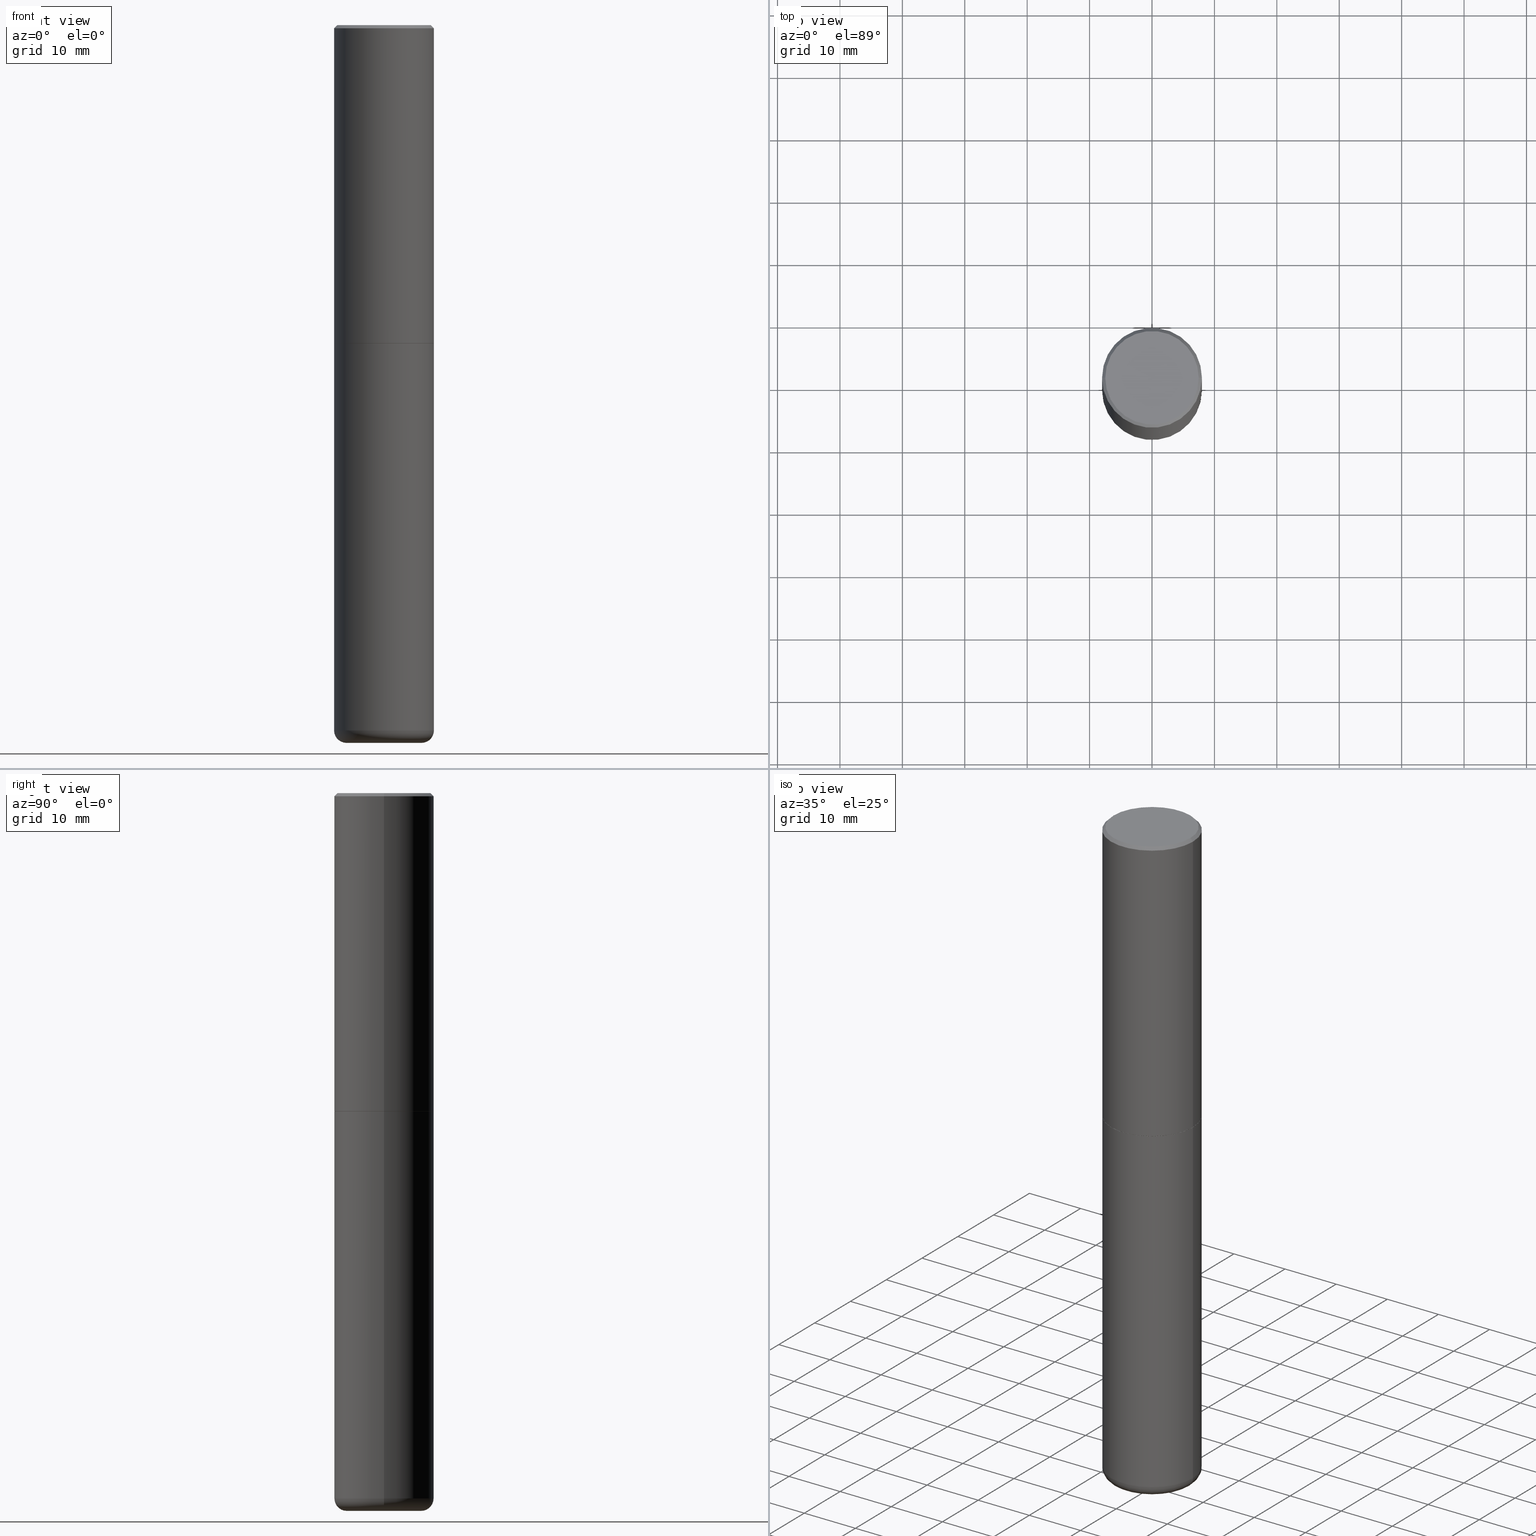
[diagram: canonical four-view strip — front | top / right | iso, engineering-drawing reading convention]
A machine part, canonical four-view strip (front | top / right | iso — engineering-drawing reading convention). The complete STEP part file that produces these views, byte-faithful:
ISO-10303-21;
HEADER;
FILE_DESCRIPTION (( 'STEP AP203' ),
    '1' );
FILE_NAME ('74641.STEP',
    '2024-03-06T15:48:41',
    ( '' ),
    ( '' ),
    'SwSTEP 2.0',
    'SolidWorks 2023',
    '' );
FILE_SCHEMA (( 'CONFIG_CONTROL_DESIGN' ));
ENDSEC;

DATA;
#1 = TOROIDAL_SURFACE ( 'NONE', #149, 0.2362500000000000155, 0.07869999999999967299 ) ;
#2 = ORIENTED_EDGE ( 'NONE', *, *, #263, .T. ) ;
#3 = APPROVAL_DATE_TIME ( #62, #298 ) ;
#4 = VERTEX_POINT ( 'NONE', #65 ) ;
#5 = EDGE_CURVE ( 'NONE', #123, #251, #336, .T. ) ;
#6 = CARTESIAN_POINT ( 'NONE',  ( 2.609628535838049452E-45, -3.725857925951117973E-31, -1.067128122525102851E-16 ) ) ;
#7 = CARTESIAN_POINT ( 'NONE',  ( -0.3149500000000000077, -9.034044008044774753E-15, -2.007899999999999796 ) ) ;
#8 = AXIS2_PLACEMENT_3D ( 'NONE', #413, #253, #212 ) ;
#9 = LOCAL_TIME ( 10, 48, 41.00000000000000000, #278 ) ;
#10 = EDGE_LOOP ( 'NONE', ( #190, #169, #100, #385 ) ) ;
#11 = CARTESIAN_POINT ( 'NONE',  ( 4.910256815939135870E-29, -7.010545380263151710E-15, -2.007899999999999796 ) ) ;
#12 = CARTESIAN_POINT ( 'NONE',  ( 4.910256815939135309E-29, -7.010545380263150922E-15, -2.007899999999999796 ) ) ;
#13 = AXIS2_PLACEMENT_3D ( 'NONE', #142, #77, #395 ) ;
#14 = CARTESIAN_POINT ( 'NONE',  ( -0.3149499999999998967, 2.129454468560425784E-15, -0.02000000000000006981 ) ) ;
#15 = EDGE_CURVE ( 'NONE', #345, #276, #158, .T. ) ;
#16 = DIRECTION ( 'NONE',  ( -2.445468806185136597E-29, 3.491481338843145583E-15, 1.000000000000000000 ) ) ;
#17 = PRODUCT_DEFINITION_SHAPE ( 'NONE', 'NONE',  #266 ) ;
#18 = DIRECTION ( 'NONE',  ( -1.000000000000000000, 6.982962677686265922E-15, 0.000000000000000000 ) ) ;
#19 = AXIS2_PLACEMENT_3D ( 'NONE', #397, #240, #206 ) ;
#20 = LOCAL_TIME ( 10, 48, 41.00000000000000000, #343 ) ;
#21 = FACE_OUTER_BOUND ( 'NONE', #339, .T. ) ;
#22 = CARTESIAN_POINT ( 'NONE',  ( 0.000000000000000000, 0.000000000000000000, 0.000000000000000000 ) ) ;
#23 = VERTEX_POINT ( 'NONE', #108 ) ;
#24 = ORIENTED_EDGE ( 'NONE', *, *, #367, .F. ) ;
#25 = CONICAL_SURFACE ( 'NONE', #78, 0.3149499999999998967, 0.7853981633974473908 ) ;
#26 = CARTESIAN_POINT ( 'NONE',  ( 4.910256815939135870E-29, -7.010545380263151710E-15, -2.007899999999999796 ) ) ;
#27 = CALENDAR_DATE ( 2024, 6, 3 ) ;
#28 = EDGE_CURVE ( 'NONE', #389, #99, #167, .T. ) ;
#29 = FACE_OUTER_BOUND ( 'NONE', #352, .T. ) ;
#30 = ORIENTED_EDGE ( 'NONE', *, *, #120, .T. ) ;
#31 = APPROVAL_ROLE ( '' ) ;
#32 = ORIENTED_EDGE ( 'NONE', *, *, #400, .F. ) ;
#33 = CC_DESIGN_APPROVAL ( #298, ( #79 ) ) ;
#34 = APPROVAL_STATUS ( 'not_yet_approved' ) ;
#35 = EDGE_LOOP ( 'NONE', ( #371, #96, #193, #307 ) ) ;
#36 = PERSON_AND_ORGANIZATION ( #392, #53 ) ;
#37 = ORIENTED_EDGE ( 'NONE', *, *, #319, .T. ) ;
#38 = ADVANCED_FACE ( 'NONE', ( #360 ), #315, .F. ) ;
#39 = DIRECTION ( 'NONE',  ( 2.438088387897960049E-29, -3.491481338843145188E-15, -1.000000000000000000 ) ) ;
#40 =( CONVERSION_BASED_UNIT ( 'INCH', #326 ) LENGTH_UNIT ( ) NAMED_UNIT ( #198 ) );
#41 = ADVANCED_FACE ( 'NONE', ( #256 ), #330, .T. ) ;
#42 = CARTESIAN_POINT ( 'NONE',  ( 1.838387388321359722E-28, -5.337161088697062833E-15, -4.527599999999998737 ) ) ;
#43 = APPLICATION_CONTEXT ( 'configuration controlled 3d designs of mechanical parts and assemblies' ) ;
#44 = FACE_OUTER_BOUND ( 'NONE', #91, .T. ) ;
#45 = DIRECTION ( 'NONE',  ( -1.000000000000000000, 7.105427357600999492E-15, 0.000000000000000000 ) ) ;
#46 =( GEOMETRIC_REPRESENTATION_CONTEXT ( 3 ) GLOBAL_UNCERTAINTY_ASSIGNED_CONTEXT ( ( #227 ) ) GLOBAL_UNIT_ASSIGNED_CONTEXT ( ( #40, #396, #239 ) ) REPRESENTATION_CONTEXT ( 'NONE', 'WORKASPACE' ) );
#47 = DIRECTION ( 'NONE',  ( 0.000000000000000000, 0.000000000000000000, 1.000000000000000000 ) ) ;
#48 = PLANE ( 'NONE',  #124 ) ;
#49 = CARTESIAN_POINT ( 'NONE',  ( 4.890937612370289799E-31, -6.982962677686315028E-17, -0.02000000000000006981 ) ) ;
#50 = APPLICATION_CONTEXT ( 'configuration controlled 3d designs of mechanical parts and assemblies' ) ;
#51 = DIRECTION ( 'NONE',  ( 1.000000000000000000, -6.982962677686269077E-15, 0.000000000000000000 ) ) ;
#52 = AXIS2_PLACEMENT_3D ( 'NONE', #272, #84, #217 ) ;
#53 = ORGANIZATION ( 'UNSPECIFIED', 'UNSPECIFIED', '' ) ;
#54 = DIRECTION ( 'NONE',  ( -2.445468806185136597E-29, 3.491481338843145583E-15, 1.000000000000000000 ) ) ;
#55 = ORIENTED_EDGE ( 'NONE', *, *, #71, .F. ) ;
#56 = DIRECTION ( 'NONE',  ( 1.000000000000000000, -6.982962677686266711E-15, 4.876176775795936353E-29 ) ) ;
#57 = PLANE ( 'NONE',  #111 ) ;
#58 = ORIENTED_EDGE ( 'NONE', *, *, #15, .F. ) ;
#59 = EDGE_CURVE ( 'NONE', #4, #225, #347, .T. ) ;
#60 = AXIS2_PLACEMENT_3D ( 'NONE', #236, #147, #109 ) ;
#61 = CARTESIAN_POINT ( 'NONE',  ( 2.609628535838049452E-45, -3.725857925951117973E-31, -1.067128122525102851E-16 ) ) ;
#62 = DATE_AND_TIME ( #130, #214 ) ;
#63 = ORIENTED_EDGE ( 'NONE', *, *, #319, .F. ) ;
#64 = CC_DESIGN_PERSON_AND_ORGANIZATION_ASSIGNMENT ( #95, #355, ( #79 ) ) ;
#65 = CARTESIAN_POINT ( 'NONE',  ( 0.3149499999999998967, -2.230543471175006266E-15, -0.02000000000000006981 ) ) ;
#66 = AXIS2_PLACEMENT_3D ( 'NONE', #42, #265, #75 ) ;
#67 = CARTESIAN_POINT ( 'NONE',  ( 4.910256815939135309E-29, -7.010545380263150922E-15, -2.007899999999999796 ) ) ;
#68 = APPROVAL_PERSON_ORGANIZATION ( #36, #178, #188 ) ;
#69 = DIRECTION ( 'NONE',  ( -2.445468806185136597E-29, 3.491481338843145583E-15, 1.000000000000000000 ) ) ;
#70 = ORIENTED_EDGE ( 'NONE', *, *, #302, .T. ) ;
#71 = EDGE_CURVE ( 'NONE', #276, #345, #310, .T. ) ;
#72 = DIRECTION ( 'NONE',  ( 0.7071067811865469066, -7.319954787623254468E-15, -0.7071067811865482389 ) ) ;
#73 = VERTEX_POINT ( 'NONE', #7 ) ;
#74 = AXIS2_PLACEMENT_3D ( 'NONE', #6, #257, #166 ) ;
#75 = DIRECTION ( 'NONE',  ( -1.000000000000000000, 6.982962677686265922E-15, -4.876176775795935793E-29 ) ) ;
#76 = DIRECTION ( 'NONE',  ( 7.105427357601001859E-15, 1.000000000000000000, -3.491481338843145583E-15 ) ) ;
#77 = DIRECTION ( 'NONE',  ( -2.445468806185136597E-29, 3.491481338843145583E-15, 1.000000000000000000 ) ) ;
#78 = AXIS2_PLACEMENT_3D ( 'NONE', #49, #170, #18 ) ;
#79 = SECURITY_CLASSIFICATION ( '', '', #349 ) ;
#80 = PRODUCT ( '74641', '74641', '', ( #155 ) ) ;
#81 = FACE_OUTER_BOUND ( 'NONE', #262, .T. ) ;
#82 = EDGE_CURVE ( 'NONE', #251, #225, #261, .T. ) ;
#83 = PERSON_AND_ORGANIZATION_ROLE ( 'creator' ) ;
#84 = DIRECTION ( 'NONE',  ( -2.445468806185136597E-29, 3.491481338843145583E-15, 1.000000000000000000 ) ) ;
#85 = LINE ( 'NONE', #249, #242 ) ;
#86 = ORIENTED_EDGE ( 'NONE', *, *, #28, .F. ) ;
#87 = VECTOR ( 'NONE', #284, 39.37007874015748143 ) ;
#88 = PERSON_AND_ORGANIZATION ( #392, #53 ) ;
#89 = DIRECTION ( 'NONE',  ( -0.7071067811867165487, 7.493145998870964739E-15, 0.7071067811863784858 ) ) ;
#90 = ADVANCED_FACE ( 'NONE', ( #267 ), #1, .T. ) ;
#91 = EDGE_LOOP ( 'NONE', ( #273, #200, #187, #30 ) ) ;
#92 = DIRECTION ( 'NONE',  ( -2.445468806185136597E-29, 3.491481338843145583E-15, 1.000000000000000000 ) ) ;
#93 = ADVANCED_FACE ( 'NONE', ( #81 ), #209, .T. ) ;
#94 = EDGE_LOOP ( 'NONE', ( #316, #165, #213, #382 ) ) ;
#95 = PERSON_AND_ORGANIZATION ( #392, #53 ) ;
#96 = ORIENTED_EDGE ( 'NONE', *, *, #222, .T. ) ;
#97 = AXIS2_PLACEMENT_3D ( 'NONE', #226, #39, #139 ) ;
#98 = VERTEX_POINT ( 'NONE', #293 ) ;
#99 = VERTEX_POINT ( 'NONE', #114 ) ;
#100 = ORIENTED_EDGE ( 'NONE', *, *, #334, .T. ) ;
#101 = APPROVAL_DATE_TIME ( #191, #178 ) ;
#102 = AXIS2_PLACEMENT_3D ( 'NONE', #332, #16, #145 ) ;
#103 = ORIENTED_EDGE ( 'NONE', *, *, #105, .T. ) ;
#104 = AXIS2_PLACEMENT_3D ( 'NONE', #22, #153, #56 ) ;
#105 = EDGE_CURVE ( 'NONE', #73, #414, #381, .T. ) ;
#106 = CARTESIAN_POINT ( 'NONE',  ( -0.3149499999999998967, 2.129454468560425784E-15, -0.02000000000000006981 ) ) ;
#107 = ADVANCED_FACE ( 'NONE', ( #333 ), #141, .T. ) ;
#108 = CARTESIAN_POINT ( 'NONE',  ( -0.3149500000000002853, -1.300587416574145677E-15, -2.006899999999999906 ) ) ;
#109 = DIRECTION ( 'NONE',  ( 1.000000000000000000, -6.982962677686263555E-15, 0.000000000000000000 ) ) ;
#110 = CIRCLE ( 'NONE', #207, 0.2949499999999999345 ) ;
#111 = AXIS2_PLACEMENT_3D ( 'NONE', #26, #375, #162 ) ;
#112 = ADVANCED_FACE ( 'NONE', ( #269 ), #373, .T. ) ;
#113 = CARTESIAN_POINT ( 'NONE',  ( 4.907811347132950267E-29, -7.007053898924307914E-15, -2.006899999999999906 ) ) ;
#114 = CARTESIAN_POINT ( 'NONE',  ( 0.3149500000000002853, -9.206337994261599363E-15, -2.006899999999999906 ) ) ;
#115 =( LENGTH_UNIT ( ) NAMED_UNIT ( * ) SI_UNIT ( $, .METRE. ) );
#116 = CARTESIAN_POINT ( 'NONE',  ( 0.2949499999999999345, -2.127023677808859680E-15, -1.067128122524956418E-16 ) ) ;
#117 = ADVANCED_FACE ( 'NONE', ( #328 ), #48, .F. ) ;
#118 = VECTOR ( 'NONE', #72, 39.37007874015748143 ) ;
#119 = DIRECTION ( 'NONE',  ( -2.445468806185136597E-29, 3.491481338843145583E-15, 1.000000000000000000 ) ) ;
#120 = EDGE_CURVE ( 'NONE', #225, #4, #388, .T. ) ;
#121 = ORIENTED_EDGE ( 'NONE', *, *, #400, .T. ) ;
#122 = DIRECTION ( 'NONE',  ( -2.445468806185136877E-29, 3.491481338843145188E-15, 1.000000000000000000 ) ) ;
#123 = VERTEX_POINT ( 'NONE', #116 ) ;
#124 = AXIS2_PLACEMENT_3D ( 'NONE', #12, #295, #176 ) ;
#125 = VECTOR ( 'NONE', #122, 39.37007874015748143 ) ;
#126 = DIRECTION ( 'NONE',  ( -2.445468806185136597E-29, 3.491481338843145583E-15, 1.000000000000000000 ) ) ;
#127 = EDGE_LOOP ( 'NONE', ( #2, #37, #232, #86 ) ) ;
#128 = DIRECTION ( 'NONE',  ( -2.445468806185136597E-29, 3.491481338843145583E-15, 1.000000000000000000 ) ) ;
#129 = ORIENTED_EDGE ( 'NONE', *, *, #334, .F. ) ;
#130 = CALENDAR_DATE ( 2024, 6, 3 ) ;
#131 = LINE ( 'NONE', #245, #125 ) ;
#132 = VECTOR ( 'NONE', #297, 39.37007874015748143 ) ;
#133 = CONICAL_SURFACE ( 'NONE', #235, 0.3139500000000000068, 0.7853981633976873100 ) ;
#134 = DIRECTION ( 'NONE',  ( 1.000000000000000000, -6.982962677686269077E-15, 0.000000000000000000 ) ) ;
#135 = ORIENTED_EDGE ( 'NONE', *, *, #263, .F. ) ;
#136 = DATE_AND_TIME ( #285, #312 ) ;
#137 = AXIS2_PLACEMENT_3D ( 'NONE', #403, #204, #366 ) ;
#138 = EDGE_CURVE ( 'NONE', #98, #73, #205, .T. ) ;
#139 = DIRECTION ( 'NONE',  ( -1.000000000000000000, 6.982962677686265922E-15, -4.876176775795935793E-29 ) ) ;
#140 = EDGE_LOOP ( 'NONE', ( #390, #323 ) ) ;
#141 = PLANE ( 'NONE',  #66 ) ;
#142 = CARTESIAN_POINT ( 'NONE',  ( 4.890937612370289799E-31, -6.982962677686315028E-17, -0.02000000000000006981 ) ) ;
#143 = CLOSED_SHELL ( 'NONE', ( #41, #405, #233, #148, #290, #372, #117, #38 ) ) ;
#144 = FACE_OUTER_BOUND ( 'NONE', #160, .T. ) ;
#145 = DIRECTION ( 'NONE',  ( 1.000000000000000000, -6.982962677686269866E-15, 0.000000000000000000 ) ) ;
#146 = APPROVAL_DATE_TIME ( #243, #280 ) ;
#147 = DIRECTION ( 'NONE',  ( -2.445468806185136597E-29, 3.491481338843145583E-15, 1.000000000000000000 ) ) ;
#148 = ADVANCED_FACE ( 'NONE', ( #44 ), #25, .T. ) ;
#149 = AXIS2_PLACEMENT_3D ( 'NONE', #173, #393, #241 ) ;
#150 = DESIGN_CONTEXT ( 'detailed design', #43, 'design' ) ;
#151 = CC_DESIGN_APPROVAL ( #178, ( #255 ) ) ;
#152 = CARTESIAN_POINT ( 'NONE',  ( 0.3149500000000000632, -2.199284095337290265E-15, 1.535751875536930410E-29 ) ) ;
#153 = DIRECTION ( 'NONE',  ( -2.445468806185136597E-29, 3.491481338843145583E-15, 1.000000000000000000 ) ) ;
#154 = ORIENTED_EDGE ( 'NONE', *, *, #192, .F. ) ;
#155 = MECHANICAL_CONTEXT ( 'NONE', #50, 'mechanical' ) ;
#156 = DIRECTION ( 'NONE',  ( 1.000000000000000000, -6.982962677686266711E-15, 4.876176775795936353E-29 ) ) ;
#157 = ORIENTED_EDGE ( 'NONE', *, *, #417, .T. ) ;
#158 = CIRCLE ( 'NONE', #300, 0.2362500000000000433 ) ;
#159 = CARTESIAN_POINT ( 'NONE',  ( 0.2362500000000000155, -1.718297626098265217E-14, -4.448900000000000077 ) ) ;
#160 = EDGE_LOOP ( 'NONE', ( #219, #157, #291, #359 ) ) ;
#161 = PERSON_AND_ORGANIZATION ( #392, #53 ) ;
#162 = DIRECTION ( 'NONE',  ( -1.000000000000000000, 6.982962677686265922E-15, -4.876176775795935793E-29 ) ) ;
#163 = ORIENTED_EDGE ( 'NONE', *, *, #59, .F. ) ;
#164 = AXIS2_PLACEMENT_3D ( 'NONE', #361, #179, #363 ) ;
#165 = ORIENTED_EDGE ( 'NONE', *, *, #15, .T. ) ;
#166 = DIRECTION ( 'NONE',  ( 1.000000000000000000, -6.982962677686267499E-15, 4.874125435057322753E-29 ) ) ;
#167 = LINE ( 'NONE', #386, #87 ) ;
#168 = CIRCLE ( 'NONE', #102, 0.3149500000000000077 ) ;
#169 = ORIENTED_EDGE ( 'NONE', *, *, #367, .T. ) ;
#170 = DIRECTION ( 'NONE',  ( 2.445468806185136597E-29, -3.491481338843145583E-15, -1.000000000000000000 ) ) ;
#171 = EDGE_CURVE ( 'NONE', #99, #23, #364, .T. ) ;
#172 = DIRECTION ( 'NONE',  ( -2.445468806185136597E-29, 3.491481338843145583E-15, 1.000000000000000000 ) ) ;
#173 = CARTESIAN_POINT ( 'NONE',  ( 1.087964617183705369E-28, -1.553325132837927055E-14, -4.448900000000000077 ) ) ;
#174 = AXIS2_PLACEMENT_3D ( 'NONE', #318, #287, #258 ) ;
#175 = CARTESIAN_POINT ( 'NONE',  ( 0.000000000000000000, 0.000000000000000000, 0.000000000000000000 ) ) ;
#176 = DIRECTION ( 'NONE',  ( 1.000000000000000000, -6.982962677686265922E-15, 4.876176775795935793E-29 ) ) ;
#177 = EDGE_CURVE ( 'NONE', #379, #389, #228, .T. ) ;
#178 = APPROVAL ( #380, 'UNSPECIFIED' ) ;
#179 = DIRECTION ( 'NONE',  ( -2.445468806185136597E-29, 3.491481338843145583E-15, 1.000000000000000000 ) ) ;
#180 = DIRECTION ( 'NONE',  ( -6.982962677686266711E-15, -1.000000000000000000, 3.491481338843145583E-15 ) ) ;
#181 = AXIS2_PLACEMENT_3D ( 'NONE', #309, #128, #156 ) ;
#182 = DIRECTION ( 'NONE',  ( -2.445468806185136877E-29, 3.491481338843145188E-15, 1.000000000000000000 ) ) ;
#183 = ORIENTED_EDGE ( 'NONE', *, *, #105, .F. ) ;
#184 = CARTESIAN_POINT ( 'NONE',  ( 0.3149500000000000077, -9.209829475600440793E-15, -2.007899999999999796 ) ) ;
#185 = VERTEX_POINT ( 'NONE', #327 ) ;
#186 = DIRECTION ( 'NONE',  ( 1.000000000000000000, -6.982962677686267499E-15, 0.000000000000000000 ) ) ;
#187 = ORIENTED_EDGE ( 'NONE', *, *, #82, .T. ) ;
#188 = APPROVAL_ROLE ( '' ) ;
#189 = CARTESIAN_POINT ( 'NONE',  ( 1.087964617183705369E-28, -1.553325132837927055E-14, -4.448900000000000077 ) ) ;
#190 = ORIENTED_EDGE ( 'NONE', *, *, #358, .F. ) ;
#191 = DATE_AND_TIME ( #27, #402 ) ;
#192 = EDGE_CURVE ( 'NONE', #414, #73, #248, .T. ) ;
#193 = ORIENTED_EDGE ( 'NONE', *, *, #302, .F. ) ;
#194 = DIRECTION ( 'NONE',  ( -2.445468806185136597E-29, 3.491481338843145583E-15, 1.000000000000000000 ) ) ;
#195 = AXIS2_PLACEMENT_3D ( 'NONE', #387, #357, #289 ) ;
#196 = VECTOR ( 'NONE', #89, 39.37007874015748143 ) ;
#197 = DIRECTION ( 'NONE',  ( 1.000000000000000000, -6.982962677686269077E-15, 0.000000000000000000 ) ) ;
#198 = DIMENSIONAL_EXPONENTS ( 1.000000000000000000, 0.000000000000000000, 0.000000000000000000, 0.000000000000000000, 0.000000000000000000, 0.000000000000000000, 0.000000000000000000 ) ;
#199 = ORIENTED_EDGE ( 'NONE', *, *, #171, .T. ) ;
#200 = ORIENTED_EDGE ( 'NONE', *, *, #252, .F. ) ;
#201 = CC_DESIGN_PERSON_AND_ORGANIZATION_ASSIGNMENT ( #221, #418, ( #255 ) ) ;
#202 = AXIS2_PLACEMENT_3D ( 'NONE', #292, #119, #203 ) ;
#203 = DIRECTION ( 'NONE',  ( 1.000000000000000000, -6.982962677686269077E-15, 0.000000000000000000 ) ) ;
#204 = DIRECTION ( 'NONE',  ( -2.445468806185136597E-29, 3.491481338843145583E-15, 1.000000000000000000 ) ) ;
#205 = LINE ( 'NONE', #299, #132 ) ;
#206 = DIRECTION ( 'NONE',  ( -1.000000000000000000, 6.982962677686265922E-15, 0.000000000000000000 ) ) ;
#207 = AXIS2_PLACEMENT_3D ( 'NONE', #61, #92, #303 ) ;
#208 = CC_DESIGN_PERSON_AND_ORGANIZATION_ASSIGNMENT ( #368, #83, ( #266 ) ) ;
#209 = CYLINDRICAL_SURFACE ( 'NONE', #164, 0.3149500000000000077 ) ;
#210 = DATE_AND_TIME ( #274, #20 ) ;
#211 = CARTESIAN_POINT ( 'NONE',  ( 4.910256815939135309E-29, -7.010545380263150922E-15, -2.007899999999999796 ) ) ;
#212 = DIRECTION ( 'NONE',  ( 1.000000000000000000, -6.982962677686269077E-15, 0.000000000000000000 ) ) ;
#213 = ORIENTED_EDGE ( 'NONE', *, *, #391, .T. ) ;
#214 = LOCAL_TIME ( 10, 48, 41.00000000000000000, #415 ) ;
#215 = CARTESIAN_POINT ( 'NONE',  ( -0.2362500000000000433, -1.371238533930791379E-14, -4.527599999999998737 ) ) ;
#216 = APPLICATION_PROTOCOL_DEFINITION ( 'international standard', 'config_control_design', 1994, #43 ) ;
#217 = DIRECTION ( 'NONE',  ( 1.000000000000000000, -6.982962677686266711E-15, 4.876176775795936353E-29 ) ) ;
#218 = DATE_TIME_ROLE ( 'classification_date' ) ;
#219 = ORIENTED_EDGE ( 'NONE', *, *, #5, .F. ) ;
#220 = CIRCLE ( 'NONE', #8, 0.3139500000000000068 ) ;
#221 = PERSON_AND_ORGANIZATION ( #392, #53 ) ;
#222 = EDGE_CURVE ( 'NONE', #345, #98, #354, .T. ) ;
#223 = CC_DESIGN_PERSON_AND_ORGANIZATION_ASSIGNMENT ( #271, #246, ( #80 ) ) ;
#224 = ADVANCED_BREP_SHAPE_REPRESENTATION ( '74641', ( #308, #304, #294 ), #46 ) ;
#225 = VERTEX_POINT ( 'NONE', #14 ) ;
#226 = CARTESIAN_POINT ( 'NONE',  ( 2.059624841783564063E-15, 0.2949499999999999345, -1.083168827018040718E-15 ) ) ;
#227 = UNCERTAINTY_MEASURE_WITH_UNIT (LENGTH_MEASURE( 1.000000000000000082E-05 ), #40, 'distance_accuracy_value', 'NONE');
#228 = CIRCLE ( 'NONE', #202, 0.3139500000000000068 ) ;
#229 = CC_DESIGN_SECURITY_CLASSIFICATION ( #79, ( #255 ) ) ;
#230 = ORIENTED_EDGE ( 'NONE', *, *, #138, .T. ) ;
#231 = EDGE_LOOP ( 'NONE', ( #63, #351, #305, #24 ) ) ;
#232 = ORIENTED_EDGE ( 'NONE', *, *, #171, .F. ) ;
#233 = ADVANCED_FACE ( 'NONE', ( #144 ), #277, .T. ) ;
#234 = CIRCLE ( 'NONE', #410, 0.3149500000000000077 ) ;
#235 = AXIS2_PLACEMENT_3D ( 'NONE', #211, #54, #51 ) ;
#236 = CARTESIAN_POINT ( 'NONE',  ( 4.910256815939135870E-29, -7.010545380263151710E-15, -2.007899999999999796 ) ) ;
#237 = APPLICATION_PROTOCOL_DEFINITION ( 'international standard', 'config_control_design', 1994, #50 ) ;
#238 = DIRECTION ( 'NONE',  ( 1.000000000000000000, -6.982962677686267499E-15, 0.000000000000000000 ) ) ;
#239 =( NAMED_UNIT ( * ) SI_UNIT ( $, .STERADIAN. ) SOLID_ANGLE_UNIT ( ) );
#240 = DIRECTION ( 'NONE',  ( 2.445468806185136597E-29, -3.491481338843145583E-15, -1.000000000000000000 ) ) ;
#241 = DIRECTION ( 'NONE',  ( 1.000000000000000000, -6.982962677686265133E-15, 4.883557194083112340E-29 ) ) ;
#242 = VECTOR ( 'NONE', #182, 39.37007874015748143 ) ;
#243 = DATE_AND_TIME ( #412, #9 ) ;
#244 = DIRECTION ( 'NONE',  ( -2.445468806185136597E-29, 3.491481338843145583E-15, 1.000000000000000000 ) ) ;
#245 = CARTESIAN_POINT ( 'NONE',  ( -0.3149500000000000632, 2.237854346276435985E-15, -1.549218606675782956E-29 ) ) ;
#246 = PERSON_AND_ORGANIZATION_ROLE ( 'design_owner' ) ;
#247 = CARTESIAN_POINT ( 'NONE',  ( -0.3139500000000000068, -4.774498006996093543E-15, -2.007899999999999796 ) ) ;
#248 = CIRCLE ( 'NONE', #401, 0.3149500000000000077 ) ;
#249 = CARTESIAN_POINT ( 'NONE',  ( 0.3149500000000000077, -2.199284095337289871E-15, 1.535751875536930130E-29 ) ) ;
#250 = EDGE_CURVE ( 'NONE', #98, #185, #168, .T. ) ;
#251 = VERTEX_POINT ( 'NONE', #399 ) ;
#252 = EDGE_CURVE ( 'NONE', #251, #123, #110, .T. ) ;
#253 = DIRECTION ( 'NONE',  ( -2.445468806185136597E-29, 3.491481338843145583E-15, 1.000000000000000000 ) ) ;
#254 = COORDINATED_UNIVERSAL_TIME_OFFSET ( 5, 0, .BEHIND. ) ;
#255 = PRODUCT_DEFINITION_FORMATION_WITH_SPECIFIED_SOURCE ( 'ANY', '', #80, .NOT_KNOWN. ) ;
#256 = FACE_OUTER_BOUND ( 'NONE', #127, .T. ) ;
#257 = DIRECTION ( 'NONE',  ( -2.445468806185136597E-29, 3.491481338843145583E-15, 1.000000000000000000 ) ) ;
#258 = DIRECTION ( 'NONE',  ( 1.000000000000000000, -6.982962677686265922E-15, 0.000000000000000000 ) ) ;
#259 = AXIS2_PLACEMENT_3D ( 'NONE', #113, #244, #238 ) ;
#260 = CIRCLE ( 'NONE', #338, 0.07869999999999965912 ) ;
#261 = LINE ( 'NONE', #106, #324 ) ;
#262 = EDGE_LOOP ( 'NONE', ( #407, #286, #121, #183 ) ) ;
#263 = EDGE_CURVE ( 'NONE', #389, #379, #220, .T. ) ;
#264 = CLOSED_SHELL ( 'NONE', ( #279, #90, #321, #93, #112, #107 ) ) ;
#265 = DIRECTION ( 'NONE',  ( 2.438088387897960049E-29, -3.491481338843145188E-15, -1.000000000000000000 ) ) ;
#266 = PRODUCT_DEFINITION ( 'UNKNOWN', '', #255, #150 ) ;
#267 = FACE_OUTER_BOUND ( 'NONE', #35, .T. ) ;
#268 = APPROVAL_STATUS ( 'not_yet_approved' ) ;
#269 = FACE_OUTER_BOUND ( 'NONE', #94, .T. ) ;
#270 = CARTESIAN_POINT ( 'NONE',  ( 0.2362500000000000433, -1.745775584234960235E-14, -4.527599999999998737 ) ) ;
#271 = PERSON_AND_ORGANIZATION ( #392, #53 ) ;
#272 = CARTESIAN_POINT ( 'NONE',  ( 0.000000000000000000, 0.000000000000000000, 0.000000000000000000 ) ) ;
#273 = ORIENTED_EDGE ( 'NONE', *, *, #417, .F. ) ;
#274 = CALENDAR_DATE ( 2024, 6, 3 ) ;
#275 = CYLINDRICAL_SURFACE ( 'NONE', #181, 0.3149500000000000077 ) ;
#276 = VERTEX_POINT ( 'NONE', #270 ) ;
#277 = CONICAL_SURFACE ( 'NONE', #19, 0.3149499999999998967, 0.7853981633974473908 ) ;
#278 = COORDINATED_UNIVERSAL_TIME_OFFSET ( 5, 0, .BEHIND. ) ;
#279 = ADVANCED_FACE ( 'NONE', ( #282 ), #275, .T. ) ;
#280 = APPROVAL ( #268, 'UNSPECIFIED' ) ;
#281 = EDGE_LOOP ( 'NONE', ( #135, #320 ) ) ;
#282 = FACE_OUTER_BOUND ( 'NONE', #411, .T. ) ;
#283 = CC_DESIGN_PERSON_AND_ORGANIZATION_ASSIGNMENT ( #161, #288, ( #255 ) ) ;
#284 = DIRECTION ( 'NONE',  ( 0.7071067811867165487, -2.468850131084027659E-15, 0.7071067811863784858 ) ) ;
#285 = CALENDAR_DATE ( 2024, 6, 3 ) ;
#286 = ORIENTED_EDGE ( 'NONE', *, *, #250, .T. ) ;
#287 = DIRECTION ( 'NONE',  ( -2.445468806185136597E-29, 3.491481338843145583E-15, 1.000000000000000000 ) ) ;
#288 = PERSON_AND_ORGANIZATION_ROLE ( 'design_supplier' ) ;
#289 = DIRECTION ( 'NONE',  ( 1.000000000000000000, -6.982962677686269077E-15, 0.000000000000000000 ) ) ;
#290 = ADVANCED_FACE ( 'NONE', ( #335 ), #406, .T. ) ;
#291 = ORIENTED_EDGE ( 'NONE', *, *, #59, .T. ) ;
#292 = CARTESIAN_POINT ( 'NONE',  ( 4.910256815939135309E-29, -7.010545380263150922E-15, -2.007899999999999796 ) ) ;
#293 = CARTESIAN_POINT ( 'NONE',  ( -0.3149499999999998967, -1.329539698210283615E-14, -4.448900000000000077 ) ) ;
#294 = AXIS2_PLACEMENT_3D ( 'NONE', #175, #47, #296 ) ;
#295 = DIRECTION ( 'NONE',  ( -2.438088387897960049E-29, 3.491481338843145188E-15, 1.000000000000000000 ) ) ;
#296 = DIRECTION ( 'NONE',  ( 1.000000000000000000, 0.000000000000000000, 0.000000000000000000 ) ) ;
#297 = DIRECTION ( 'NONE',  ( -2.445468806185136877E-29, 3.491481338843145188E-15, 1.000000000000000000 ) ) ;
#298 = APPROVAL ( #34, 'UNSPECIFIED' ) ;
#299 = CARTESIAN_POINT ( 'NONE',  ( -0.3149500000000000077, 2.237854346276435590E-15, -1.549218606675782676E-29 ) ) ;
#300 = AXIS2_PLACEMENT_3D ( 'NONE', #353, #194, #134 ) ;
#301 = CARTESIAN_POINT ( 'NONE',  ( 0.3139500000000000068, -9.202846512922754778E-15, -2.007899999999999796 ) ) ;
#302 = EDGE_CURVE ( 'NONE', #185, #98, #234, .T. ) ;
#303 = DIRECTION ( 'NONE',  ( 1.000000000000000000, -6.982962677686267499E-15, 4.874125435057322753E-29 ) ) ;
#304 = MANIFOLD_SOLID_BREP ( 'Body-Move/Copy2[2]', #143 ) ;
#305 = ORIENTED_EDGE ( 'NONE', *, *, #28, .T. ) ;
#306 = LINE ( 'NONE', #398, #118 ) ;
#307 = ORIENTED_EDGE ( 'NONE', *, *, #391, .F. ) ;
#308 = MANIFOLD_SOLID_BREP ( 'Body-Move/Copy2[1]', #264 ) ;
#309 = CARTESIAN_POINT ( 'NONE',  ( 0.000000000000000000, 0.000000000000000000, 0.000000000000000000 ) ) ;
#310 = CIRCLE ( 'NONE', #195, 0.2362500000000000433 ) ;
#311 = ORIENTED_EDGE ( 'NONE', *, *, #358, .T. ) ;
#312 = LOCAL_TIME ( 10, 48, 41.00000000000000000, #254 ) ;
#313 = COORDINATED_UNIVERSAL_TIME_OFFSET ( 5, 0, .BEHIND. ) ;
#314 = CARTESIAN_POINT ( 'NONE',  ( -0.3139500000000000068, -4.779796461344316734E-15, -2.007899999999999796 ) ) ;
#315 = PLANE ( 'NONE',  #97 ) ;
#316 = ORIENTED_EDGE ( 'NONE', *, *, #222, .F. ) ;
#317 = AXIS2_PLACEMENT_3D ( 'NONE', #67, #69, #197 ) ;
#318 = CARTESIAN_POINT ( 'NONE',  ( 4.890937612370289799E-31, -6.982962677686315028E-17, -0.02000000000000006981 ) ) ;
#319 = EDGE_CURVE ( 'NONE', #379, #23, #341, .T. ) ;
#320 = ORIENTED_EDGE ( 'NONE', *, *, #177, .F. ) ;
#321 = ADVANCED_FACE ( 'NONE', ( #29 ), #57, .F. ) ;
#322 = CC_DESIGN_DATE_AND_TIME_ASSIGNMENT ( #210, #408, ( #266 ) ) ;
#323 = ORIENTED_EDGE ( 'NONE', *, *, #5, .T. ) ;
#324 = VECTOR ( 'NONE', #369, 39.37007874015748143 ) ;
#325 = APPROVAL_PERSON_ORGANIZATION ( #88, #280, #340 ) ;
#326 = LENGTH_MEASURE_WITH_UNIT ( LENGTH_MEASURE( 0.02539999999999999897 ), #115 );
#327 = CARTESIAN_POINT ( 'NONE',  ( 0.3149499999999998967, -1.773253542371656200E-14, -4.448900000000000077 ) ) ;
#328 = FACE_OUTER_BOUND ( 'NONE', #281, .T. ) ;
#329 = CARTESIAN_POINT ( 'NONE',  ( -0.2362500000000000155, -1.385459411514603336E-14, -4.448900000000000077 ) ) ;
#330 = CONICAL_SURFACE ( 'NONE', #317, 0.3139500000000000068, 0.7853981633976873100 ) ;
#331 = APPROVAL_PERSON_ORGANIZATION ( #346, #298, #31 ) ;
#332 = CARTESIAN_POINT ( 'NONE',  ( 1.087964617183705369E-28, -1.553325132837927055E-14, -4.448900000000000077 ) ) ;
#333 = FACE_OUTER_BOUND ( 'NONE', #342, .T. ) ;
#334 = EDGE_CURVE ( 'NONE', #99, #4, #404, .T. ) ;
#335 = FACE_OUTER_BOUND ( 'NONE', #10, .T. ) ;
#336 = CIRCLE ( 'NONE', #74, 0.2949499999999999345 ) ;
#337 = FACE_OUTER_BOUND ( 'NONE', #231, .T. ) ;
#338 = AXIS2_PLACEMENT_3D ( 'NONE', #159, #180, #370 ) ;
#339 = EDGE_LOOP ( 'NONE', ( #199, #311, #163, #129 ) ) ;
#340 = APPROVAL_ROLE ( '' ) ;
#341 = LINE ( 'NONE', #314, #196 ) ;
#342 = EDGE_LOOP ( 'NONE', ( #55, #58 ) ) ;
#343 = COORDINATED_UNIVERSAL_TIME_OFFSET ( 5, 0, .BEHIND. ) ;
#344 = DIRECTION ( 'NONE',  ( -2.445468806185136597E-29, 3.491481338843145583E-15, 1.000000000000000000 ) ) ;
#345 = VERTEX_POINT ( 'NONE', #215 ) ;
#346 = PERSON_AND_ORGANIZATION ( #392, #53 ) ;
#347 = CIRCLE ( 'NONE', #174, 0.3149499999999998967 ) ;
#348 = VECTOR ( 'NONE', #416, 39.37007874015748143 ) ;
#349 = SECURITY_CLASSIFICATION_LEVEL ( 'unclassified' ) ;
#350 = PRODUCT_RELATED_PRODUCT_CATEGORY ( 'detail', '', ( #80 ) ) ;
#351 = ORIENTED_EDGE ( 'NONE', *, *, #177, .T. ) ;
#352 = EDGE_LOOP ( 'NONE', ( #376, #103 ) ) ;
#353 = CARTESIAN_POINT ( 'NONE',  ( 1.107210456688382074E-28, -1.580803090974622074E-14, -4.527599999999998737 ) ) ;
#354 = CIRCLE ( 'NONE', #394, 0.07869999999999965912 ) ;
#355 = PERSON_AND_ORGANIZATION_ROLE ( 'classification_officer' ) ;
#356 = AXIS2_PLACEMENT_3D ( 'NONE', #377, #126, #186 ) ;
#357 = DIRECTION ( 'NONE',  ( -2.445468806185136597E-29, 3.491481338843145583E-15, 1.000000000000000000 ) ) ;
#358 = EDGE_CURVE ( 'NONE', #23, #225, #131, .T. ) ;
#359 = ORIENTED_EDGE ( 'NONE', *, *, #82, .F. ) ;
#360 = FACE_OUTER_BOUND ( 'NONE', #140, .T. ) ;
#361 = CARTESIAN_POINT ( 'NONE',  ( 0.000000000000000000, 0.000000000000000000, 0.000000000000000000 ) ) ;
#362 = DIRECTION ( 'NONE',  ( 1.000000000000000000, -6.982962677686263555E-15, 0.000000000000000000 ) ) ;
#363 = DIRECTION ( 'NONE',  ( 1.000000000000000000, -6.982962677686266711E-15, 4.876176775795936353E-29 ) ) ;
#364 = CIRCLE ( 'NONE', #259, 0.3149500000000002853 ) ;
#365 = CIRCLE ( 'NONE', #356, 0.3149500000000002853 ) ;
#366 = DIRECTION ( 'NONE',  ( 1.000000000000000000, -6.982962677686265133E-15, 4.883557194083112340E-29 ) ) ;
#367 = EDGE_CURVE ( 'NONE', #23, #99, #365, .T. ) ;
#368 = PERSON_AND_ORGANIZATION ( #392, #53 ) ;
#369 = DIRECTION ( 'NONE',  ( -0.7071067811865469066, 2.468850131082249961E-15, -0.7071067811865482389 ) ) ;
#370 = DIRECTION ( 'NONE',  ( 1.000000000000000000, -6.982962677686250933E-15, 0.000000000000000000 ) ) ;
#371 = ORIENTED_EDGE ( 'NONE', *, *, #71, .T. ) ;
#372 = ADVANCED_FACE ( 'NONE', ( #337 ), #133, .T. ) ;
#373 = TOROIDAL_SURFACE ( 'NONE', #137, 0.2362500000000000155, 0.07869999999999967299 ) ;
#374 = CYLINDRICAL_SURFACE ( 'NONE', #104, 0.3149500000000000632 ) ;
#375 = DIRECTION ( 'NONE',  ( 2.438088387897960049E-29, -3.491481338843145188E-15, -1.000000000000000000 ) ) ;
#376 = ORIENTED_EDGE ( 'NONE', *, *, #192, .T. ) ;
#377 = CARTESIAN_POINT ( 'NONE',  ( 4.907811347132950267E-29, -7.007053898924307914E-15, -2.006899999999999906 ) ) ;
#378 = CC_DESIGN_DATE_AND_TIME_ASSIGNMENT ( #136, #218, ( #79 ) ) ;
#379 = VERTEX_POINT ( 'NONE', #247 ) ;
#380 = APPROVAL_STATUS ( 'not_yet_approved' ) ;
#381 = CIRCLE ( 'NONE', #60, 0.3149500000000000077 ) ;
#382 = ORIENTED_EDGE ( 'NONE', *, *, #250, .F. ) ;
#383 = CC_DESIGN_APPROVAL ( #280, ( #266 ) ) ;
#384 = SHAPE_DEFINITION_REPRESENTATION ( #17, #224 ) ;
#385 = ORIENTED_EDGE ( 'NONE', *, *, #120, .F. ) ;
#386 = CARTESIAN_POINT ( 'NONE',  ( 0.3139500000000000068, -9.202846512922754778E-15, -2.007899999999999796 ) ) ;
#387 = CARTESIAN_POINT ( 'NONE',  ( 1.107210456688382074E-28, -1.580803090974622074E-14, -4.527599999999998737 ) ) ;
#388 = CIRCLE ( 'NONE', #13, 0.3149499999999998967 ) ;
#389 = VERTEX_POINT ( 'NONE', #301 ) ;
#390 = ORIENTED_EDGE ( 'NONE', *, *, #252, .T. ) ;
#391 = EDGE_CURVE ( 'NONE', #276, #185, #260, .T. ) ;
#392 = PERSON ( 'UNSPECIFIED', 'UNSPECIFIED', 'UNSPECIFIED', ('UNSPECIFIED'), ('UNSPECIFIED'), ('UNSPECIFIED') ) ;
#393 = DIRECTION ( 'NONE',  ( -2.445468806185136597E-29, 3.491481338843145583E-15, 1.000000000000000000 ) ) ;
#394 = AXIS2_PLACEMENT_3D ( 'NONE', #329, #76, #45 ) ;
#395 = DIRECTION ( 'NONE',  ( 1.000000000000000000, -6.982962677686265922E-15, 0.000000000000000000 ) ) ;
#396 =( NAMED_UNIT ( * ) PLANE_ANGLE_UNIT ( ) SI_UNIT ( $, .RADIAN. ) );
#397 = CARTESIAN_POINT ( 'NONE',  ( 4.890937612370289799E-31, -6.982962677686315028E-17, -0.02000000000000006981 ) ) ;
#398 = CARTESIAN_POINT ( 'NONE',  ( 0.3149499999999998967, -2.230543471175006266E-15, -0.02000000000000006981 ) ) ;
#399 = CARTESIAN_POINT ( 'NONE',  ( -0.2949499999999999345, 2.094539655171994924E-15, -1.067128122525248050E-16 ) ) ;
#400 = EDGE_CURVE ( 'NONE', #185, #414, #85, .T. ) ;
#401 = AXIS2_PLACEMENT_3D ( 'NONE', #11, #172, #362 ) ;
#402 = LOCAL_TIME ( 10, 48, 41.00000000000000000, #313 ) ;
#403 = CARTESIAN_POINT ( 'NONE',  ( 1.087964617183705369E-28, -1.553325132837927055E-14, -4.448900000000000077 ) ) ;
#404 = LINE ( 'NONE', #152, #348 ) ;
#405 = ADVANCED_FACE ( 'NONE', ( #21 ), #374, .T. ) ;
#406 = CYLINDRICAL_SURFACE ( 'NONE', #52, 0.3149500000000000632 ) ;
#407 = ORIENTED_EDGE ( 'NONE', *, *, #138, .F. ) ;
#408 = DATE_TIME_ROLE ( 'creation_date' ) ;
#409 = DIRECTION ( 'NONE',  ( 1.000000000000000000, -6.982962677686269866E-15, 0.000000000000000000 ) ) ;
#410 = AXIS2_PLACEMENT_3D ( 'NONE', #189, #344, #409 ) ;
#411 = EDGE_LOOP ( 'NONE', ( #70, #230, #154, #32 ) ) ;
#412 = CALENDAR_DATE ( 2024, 6, 3 ) ;
#413 = CARTESIAN_POINT ( 'NONE',  ( 4.910256815939135309E-29, -7.010545380263150922E-15, -2.007899999999999796 ) ) ;
#414 = VERTEX_POINT ( 'NONE', #184 ) ;
#415 = COORDINATED_UNIVERSAL_TIME_OFFSET ( 5, 0, .BEHIND. ) ;
#416 = DIRECTION ( 'NONE',  ( -2.445468806185136877E-29, 3.491481338843145188E-15, 1.000000000000000000 ) ) ;
#417 = EDGE_CURVE ( 'NONE', #123, #4, #306, .T. ) ;
#418 = PERSON_AND_ORGANIZATION_ROLE ( 'creator' ) ;
ENDSEC;
END-ISO-10303-21;
